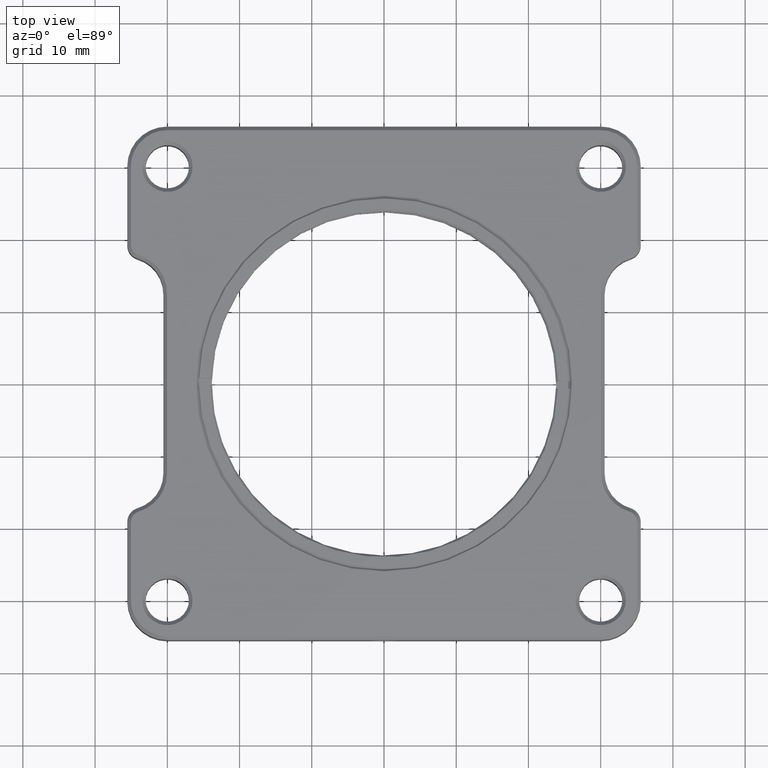
[diagram: clean part render]
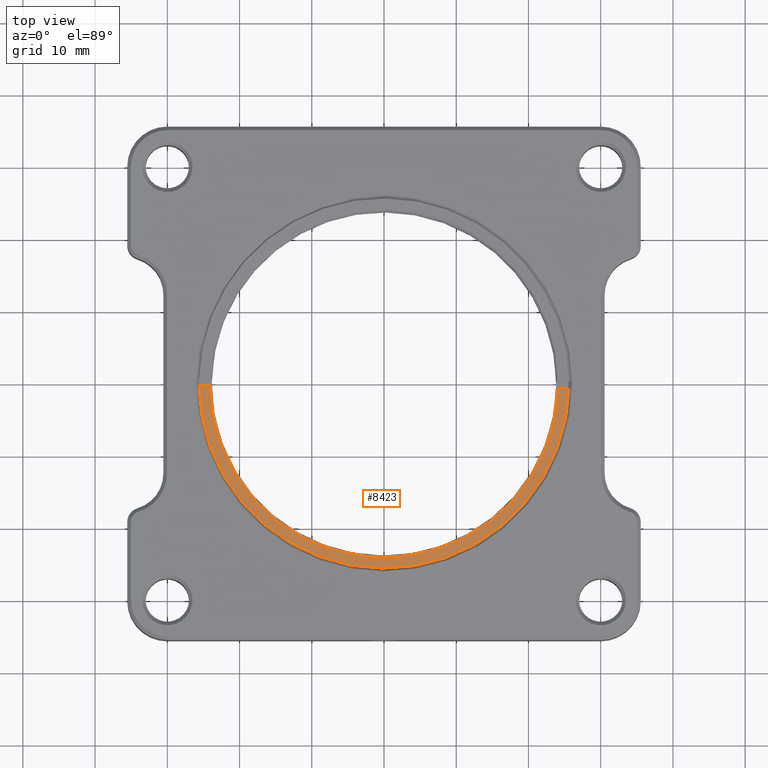
[diagram: same view with one face highlighted and labeled with its STEP entity id]
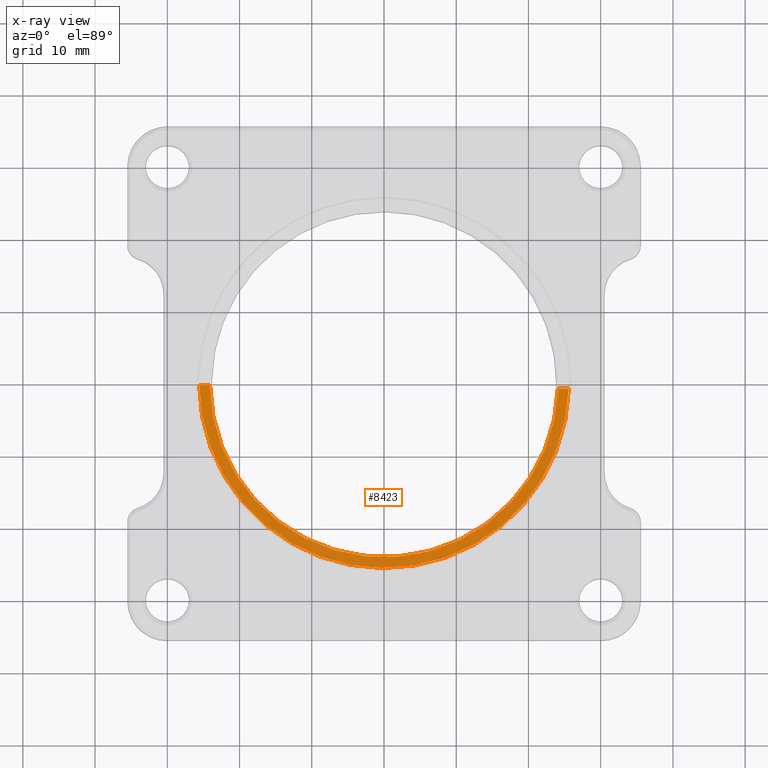
[diagram: x-ray of the same camera — body ghosted, the highlighted face saturated]
A machine part, top view. The second image highlights one B-rep face of the part: STEP entity #8423.
The next image is the same camera in x-ray: the body ghosted, the highlighted face saturated — about 0% of this face is hidden behind the body in this view.
In plain terms, the highlighted planar face has unit normal (0, -0, 1).
Its self-contained STEP definition (entity closure, byte-faithful):
#503 = CARTESIAN_POINT ( 'NONE',  ( 0.000000000000000000, 0.000000000000000000, 6.000000000000000000 ) ) ;
#992 = LINE ( 'NONE', #4697, #7485 ) ;
#1040 = DIRECTION ( 'NONE',  ( 0.000000000000000000, 0.000000000000000000, 1.000000000000000000 ) ) ;
#1155 = AXIS2_PLACEMENT_3D ( 'NONE', #6096, #1040, #2221 ) ;
#1267 = VERTEX_POINT ( 'NONE', #2583 ) ;
#1763 = ORIENTED_EDGE ( 'NONE', *, *, #8764, .T. ) ;
#2221 = DIRECTION ( 'NONE',  ( 0.009440933289305293574, 0.9999554333962223929, 0.000000000000000000 ) ) ;
#2439 = LINE ( 'NONE', #10678, #6684 ) ;
#2583 = CARTESIAN_POINT ( 'NONE',  ( 24.08351748996205899, -0.7274032998892001611, 6.000000000000000000 ) ) ;
#2609 = DIRECTION ( 'NONE',  ( -0.000000000000000000, -0.000000000000000000, -1.000000000000000000 ) ) ;
#2700 = ORIENTED_EDGE ( 'NONE', *, *, #13132, .F. ) ;
#2883 = FACE_OUTER_BOUND ( 'NONE', #3494, .T. ) ;
#3171 = VERTEX_POINT ( 'NONE', #7829 ) ;
#3215 = VERTEX_POINT ( 'NONE', #3793 ) ;
#3479 = CARTESIAN_POINT ( 'NONE',  ( 0.000000000000000000, 0.000000000000000000, 6.000000000000000000 ) ) ;
#3494 = EDGE_LOOP ( 'NONE', ( #5707, #1763, #4601, #2700, #12031 ) ) ;
#3793 = CARTESIAN_POINT ( 'NONE',  ( -25.59319569656446802, -0.2583878622380807455, 6.000000000000000000 ) ) ;
#4244 = EDGE_CURVE ( 'NONE', #1267, #10229, #5738, .T. ) ;
#4257 = DIRECTION ( 'NONE',  ( 0.009440933289305293574, 0.9999554333962223929, 0.000000000000000000 ) ) ;
#4342 = AXIS2_PLACEMENT_3D ( 'NONE', #12392, #8313, #4257 ) ;
#4601 = ORIENTED_EDGE ( 'NONE', *, *, #10283, .T. ) ;
#4697 = CARTESIAN_POINT ( 'NONE',  ( -105.0000409732476925, 0.4913202786789306886, 6.000000000000000000 ) ) ;
#5707 = ORIENTED_EDGE ( 'NONE', *, *, #6956, .F. ) ;
#5738 = CIRCLE ( 'NONE', #10904, 24.09450000000006042 ) ;
#6096 = CARTESIAN_POINT ( 'NONE',  ( 0.000000000000000000, 0.000000000000000000, 6.000000000000000000 ) ) ;
#6596 = DIRECTION ( 'NONE',  ( 0.009440933289305293574, 0.9999554333962222818, 0.000000000000000000 ) ) ;
#6684 = VECTOR ( 'NONE', #12833, 1000.000000000000114 ) ;
#6819 = DIRECTION ( 'NONE',  ( 0.000000000000000000, -0.000000000000000000, 1.000000000000000000 ) ) ;
#6956 = EDGE_CURVE ( 'NONE', #3215, #10229, #992, .T. ) ;
#7405 = CIRCLE ( 'NONE', #1155, 25.59450000000006753 ) ;
#7485 = VECTOR ( 'NONE', #8650, 1000.000000000000114 ) ;
#7829 = CARTESIAN_POINT ( 'NONE',  ( 25.58375476327516296, -0.7415675711581440899, 6.000000000000000000 ) ) ;
#8116 = CIRCLE ( 'NONE', #4342, 25.59450000000006753 ) ;
#8313 = DIRECTION ( 'NONE',  ( 0.000000000000000000, 0.000000000000000000, 1.000000000000000000 ) ) ;
#8423 = ADVANCED_FACE ( 'NONE', ( #2883 ), #9534, .T. ) ;
#8650 = DIRECTION ( 'NONE',  ( 0.9999554333962223929, -0.009440933289305187756, 0.000000000000000000 ) ) ;
#8764 = EDGE_CURVE ( 'NONE', #3215, #12017, #7405, .T. ) ;
#9534 = PLANE ( 'NONE',  #10167 ) ;
#9723 = DIRECTION ( 'NONE',  ( 0.009440933289305293574, 0.9999554333962223929, 0.000000000000000000 ) ) ;
#9949 = CARTESIAN_POINT ( 'NONE',  ( -24.09295842325136405, -0.2725521335070237861, 6.000000000000000000 ) ) ;
#10167 = AXIS2_PLACEMENT_3D ( 'NONE', #3479, #6819, #9723 ) ;
#10229 = VERTEX_POINT ( 'NONE', #9949 ) ;
#10283 = EDGE_CURVE ( 'NONE', #12017, #3171, #8116, .T. ) ;
#10664 = CARTESIAN_POINT ( 'NONE',  ( -0.2416359670731249853, -25.59335934005968127, 6.000000000000000000 ) ) ;
#10678 = CARTESIAN_POINT ( 'NONE',  ( -105.0000409732476925, 0.4913202786789306886, 6.000000000000000000 ) ) ;
#10904 = AXIS2_PLACEMENT_3D ( 'NONE', #503, #2609, #6596 ) ;
#12017 = VERTEX_POINT ( 'NONE', #10664 ) ;
#12031 = ORIENTED_EDGE ( 'NONE', *, *, #4244, .T. ) ;
#12392 = CARTESIAN_POINT ( 'NONE',  ( 0.000000000000000000, 0.000000000000000000, 6.000000000000000000 ) ) ;
#12833 = DIRECTION ( 'NONE',  ( 0.9999554333962223929, -0.009440933289305187756, 0.000000000000000000 ) ) ;
#13132 = EDGE_CURVE ( 'NONE', #1267, #3171, #2439, .T. ) ;